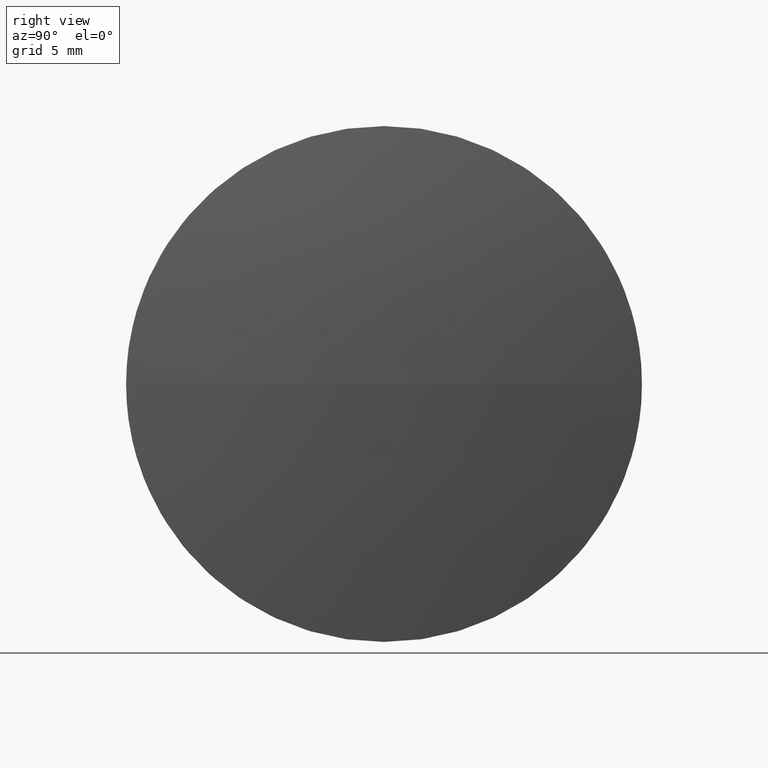
[diagram: clean part render]
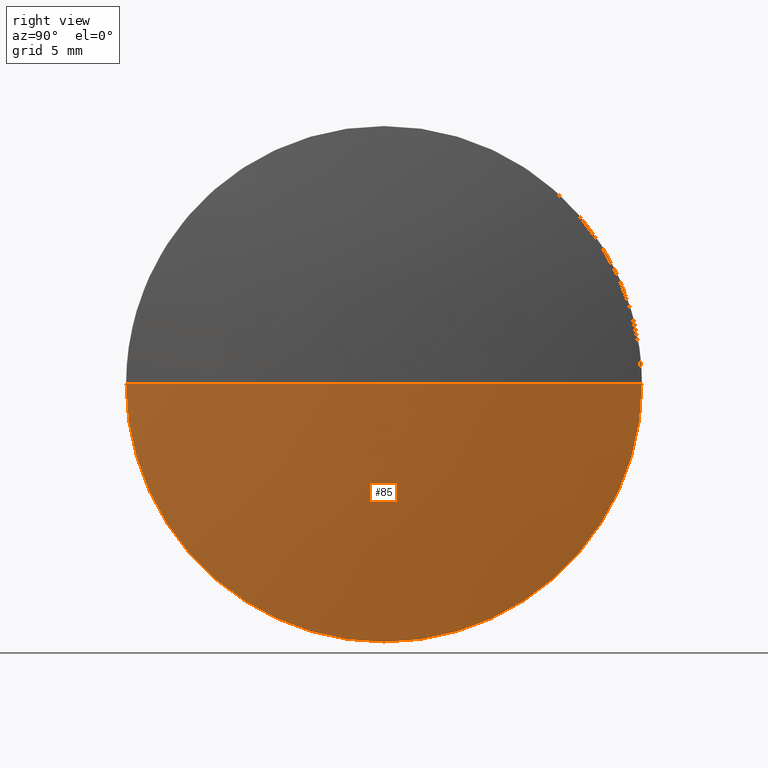
[diagram: same view with one face highlighted and labeled with its STEP entity id]
A machine part, right view. The second image highlights one B-rep face of the part: STEP entity #85.
In plain terms, the highlighted spherical surface has radius 128.985 mm.
Its self-contained STEP definition (entity closure, byte-faithful):
#3 = AXIS2_PLACEMENT_3D ( 'NONE', #123, #30, #113 ) ;
#6 = CARTESIAN_POINT ( 'NONE',  ( 265.7707009259203200, 28.77305965944876200, 0.0000000000000000000 ) ) ;
#8 = DIRECTION ( 'NONE',  ( 0.0000000000000000000, 1.000000000000000000, 0.0000000000000000000 ) ) ;
#13 = EDGE_CURVE ( 'NONE', #117, #54, #173, .T. ) ;
#16 = CARTESIAN_POINT ( 'NONE',  ( 393.1958291310484700, 28.77305965944879100, 0.0000000000000000000 ) ) ;
#21 = ORIENTED_EDGE ( 'NONE', *, *, #129, .F. ) ;
#22 = CARTESIAN_POINT ( 'NONE',  ( 394.7558291310484700, 28.77305965944876900, 0.0000000000000000000 ) ) ;
#30 = DIRECTION ( 'NONE',  ( 0.0000000000000000000, 1.224646799147353200E-016, -1.000000000000000000 ) ) ;
#34 = CIRCLE ( 'NONE', #186, 20.00000000000000400 ) ;
#42 = ORIENTED_EDGE ( 'NONE', *, *, #172, .T. ) ;
#48 = EDGE_CURVE ( 'NONE', #91, #132, #34, .T. ) ;
#49 = CIRCLE ( 'NONE', #86, 20.00000000000000400 ) ;
#50 = DIRECTION ( 'NONE',  ( -0.0000000000000000000, 0.0000000000000000000, 1.000000000000000000 ) ) ;
#54 = VERTEX_POINT ( 'NONE', #61 ) ;
#60 = FACE_OUTER_BOUND ( 'NONE', #73, .T. ) ;
#61 = CARTESIAN_POINT ( 'NONE',  ( 393.1958291310484700, 48.77305965944879800, 0.0000000000000000000 ) ) ;
#63 = ORIENTED_EDGE ( 'NONE', *, *, #48, .F. ) ;
#68 = AXIS2_PLACEMENT_3D ( 'NONE', #150, #80, #8 ) ;
#73 = EDGE_LOOP ( 'NONE', ( #130, #42, #63, #21 ) ) ;
#80 = DIRECTION ( 'NONE',  ( -0.0000000000000000000, 0.0000000000000000000, -1.000000000000000000 ) ) ;
#85 = ADVANCED_FACE ( 'NONE', ( #60 ), #163, .T. ) ;
#86 = AXIS2_PLACEMENT_3D ( 'NONE', #182, #180, #112 ) ;
#88 = CIRCLE ( 'NONE', #3, 128.9851282051281500 ) ;
#91 = VERTEX_POINT ( 'NONE', #125 ) ;
#112 = DIRECTION ( 'NONE',  ( 0.0000000000000000000, 0.0000000000000000000, 1.000000000000000000 ) ) ;
#113 = DIRECTION ( 'NONE',  ( 0.0000000000000000000, 1.000000000000000000, 1.224646799147353200E-016 ) ) ;
#117 = VERTEX_POINT ( 'NONE', #22 ) ;
#118 = DIRECTION ( 'NONE',  ( -1.000000000000000000, -0.0000000000000000000, -0.0000000000000000000 ) ) ;
#119 = DIRECTION ( 'NONE',  ( 1.000000000000000000, 0.0000000000000000000, 0.0000000000000000000 ) ) ;
#123 = CARTESIAN_POINT ( 'NONE',  ( 265.7707009259203200, 28.77305965944876200, 0.0000000000000000000 ) ) ;
#124 = DIRECTION ( 'NONE',  ( 0.0000000000000000000, 0.0000000000000000000, 1.000000000000000000 ) ) ;
#125 = CARTESIAN_POINT ( 'NONE',  ( 393.1958291310484700, 28.77305965944879400, -20.00000000000000400 ) ) ;
#129 = EDGE_CURVE ( 'NONE', #54, #91, #49, .T. ) ;
#130 = ORIENTED_EDGE ( 'NONE', *, *, #13, .F. ) ;
#132 = VERTEX_POINT ( 'NONE', #159 ) ;
#138 = AXIS2_PLACEMENT_3D ( 'NONE', #6, #50, #119 ) ;
#150 = CARTESIAN_POINT ( 'NONE',  ( 265.7707009259203200, 28.77305965944876200, 0.0000000000000000000 ) ) ;
#159 = CARTESIAN_POINT ( 'NONE',  ( 393.1958291310484700, 8.773059659448762200, -2.449293598294706100E-015 ) ) ;
#163 = SPHERICAL_SURFACE ( 'NONE', #68, 128.9851282051281500 ) ;
#172 = EDGE_CURVE ( 'NONE', #117, #132, #88, .T. ) ;
#173 = CIRCLE ( 'NONE', #138, 128.9851282051281500 ) ;
#180 = DIRECTION ( 'NONE',  ( -1.000000000000000000, -0.0000000000000000000, -0.0000000000000000000 ) ) ;
#182 = CARTESIAN_POINT ( 'NONE',  ( 393.1958291310484700, 28.77305965944879100, 0.0000000000000000000 ) ) ;
#186 = AXIS2_PLACEMENT_3D ( 'NONE', #16, #118, #124 ) ;